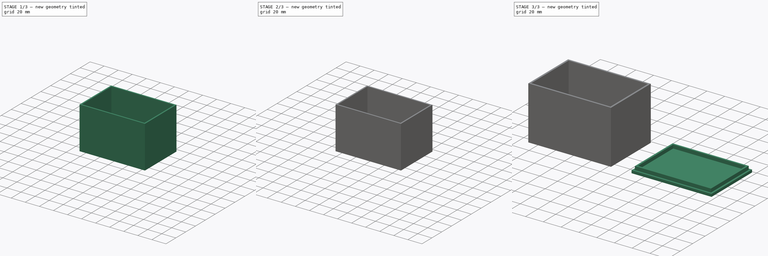
[diagram: build sequence overview — one tinted view per stage of 3, left to right]
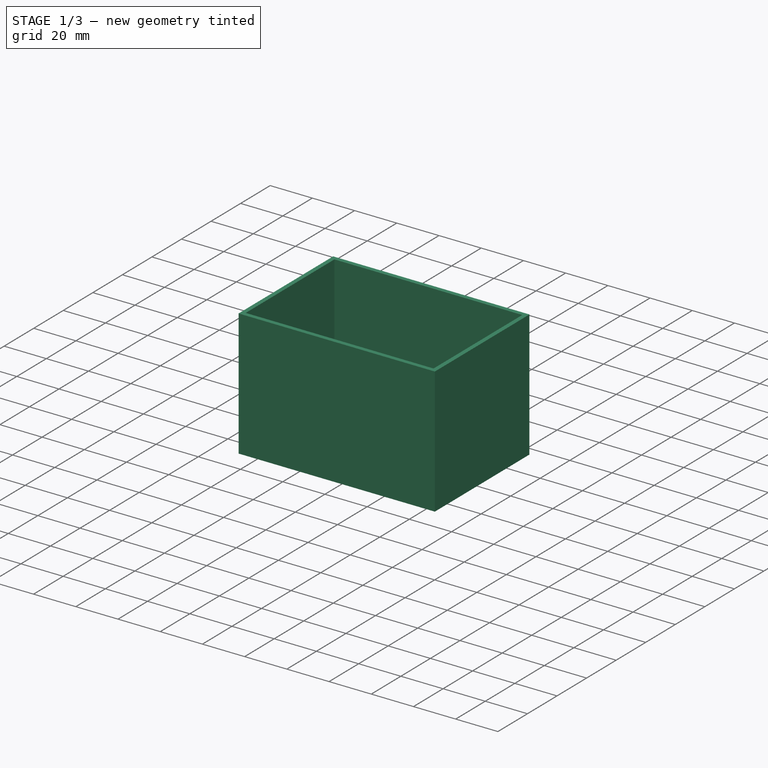
[diagram: stage 1 of 3 — iso view after this stage's code; geometry added in this stage tinted green]
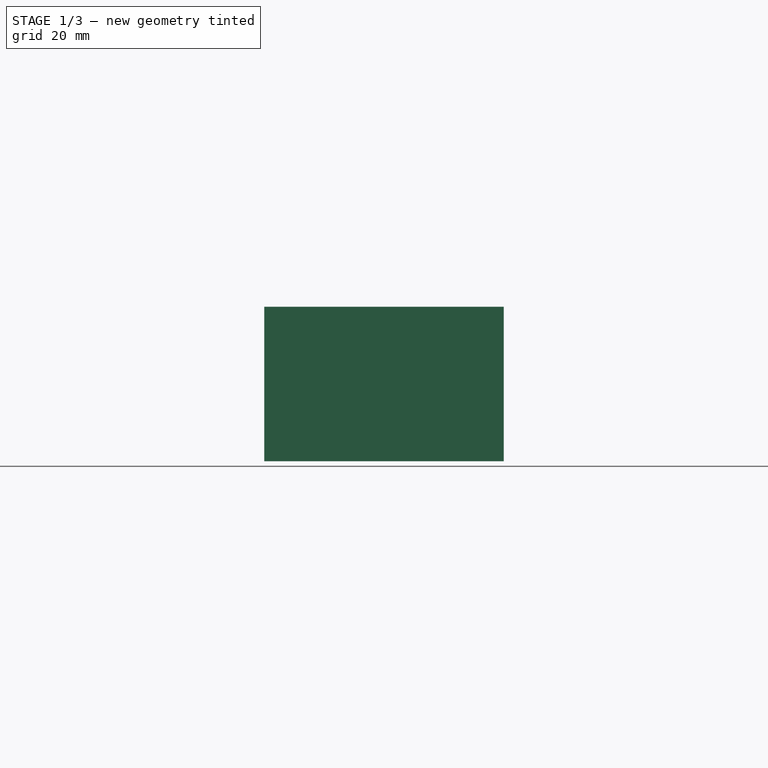
[diagram: stage 1 of 3 — front view after this stage's code; geometry added in this stage tinted green]
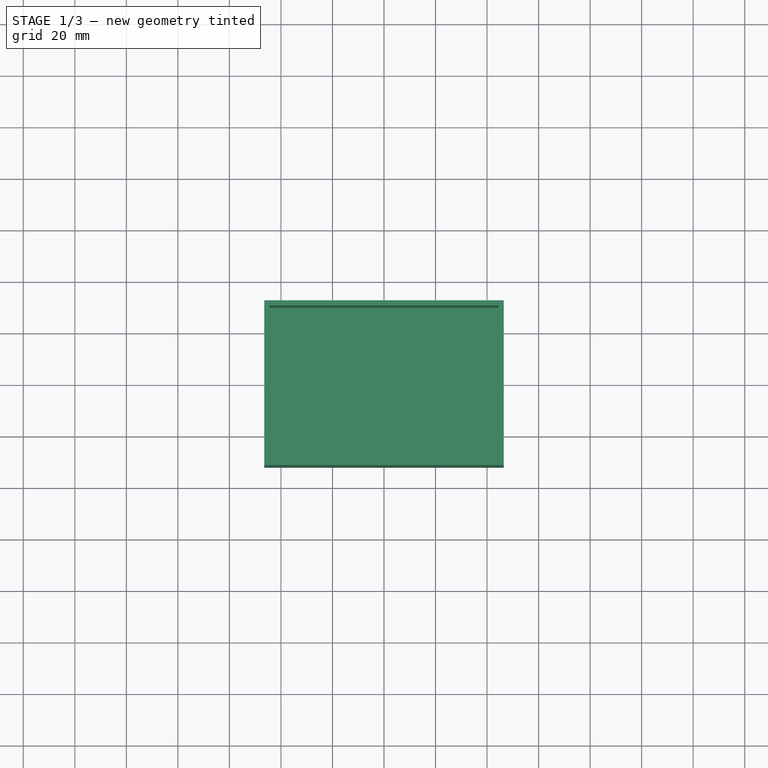
[diagram: stage 1 of 3 — top view after this stage's code; geometry added in this stage tinted green]
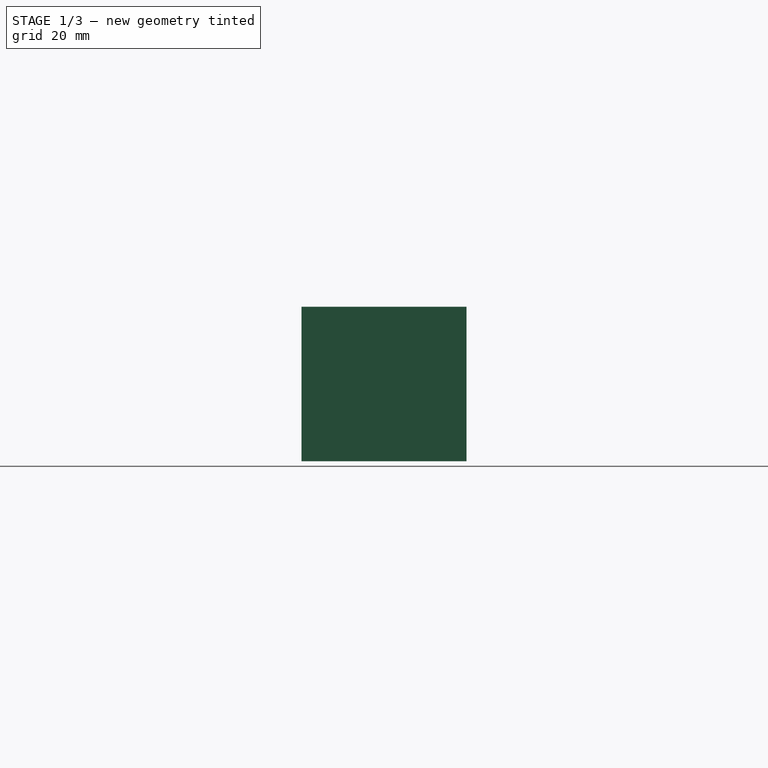
[diagram: stage 1 of 3 — right view after this stage's code; geometry added in this stage tinted green]
FCSTD DOCUMENT  (FreeCAD 0.19R24267 +99 (Git))
Label: case_spi4_v2
License: All rights reserved
LicenseURL: http://en.wikipedia.org/wiki/All_rights_reserved
objects: Sketcher::SketchObject×6, PartDesign::Pad×4, PartDesign::Body×2, PartDesign::Pocket×1, PartDesign::ShapeBinder×1
note: 19 computed .brp shape members not serialized (recipe doc carries the construction recipe); baked Part::Feature solids carry a one-line shape summary decoded from their .brp

FEATURE [Sketcher::SketchObject] Sketch  label="PCB_dimensiuns"
  FullyConstrained = true
  MapMode = 5
  Support = -> [XY_Plane]
  sketch-geometry (28):
    g0: LineSegment StartX=-39.5 StartY=28 StartZ=0 EndX=39.5 EndY=28 EndZ=0
    g1: LineSegment StartX=42.5 StartY=25 StartZ=0 EndX=42.5 EndY=-25 EndZ=0
    g2: LineSegment StartX=39.5 StartY=-28 StartZ=0 EndX=-39.5 EndY=-28 EndZ=0
    g3: LineSegment StartX=-42.5 StartY=-25 StartZ=0 EndX=-42.5 EndY=25 EndZ=0
    g4: ArcOfCircle CenterX=39.5 CenterY=25 CenterZ=0 NormalX=0 NormalY=0 NormalZ=1 AngleXU=0 Radius=3 StartAngle=0 EndAngle=1.5708
    g5: ArcOfCircle CenterX=39.5 CenterY=-25 CenterZ=0 NormalX=0 NormalY=0 NormalZ=1 AngleXU=0 Radius=3 StartAngle=4.71239 EndAngle=6.28319
    g6: ArcOfCircle CenterX=-39.5 CenterY=-25 CenterZ=0 NormalX=0 NormalY=0 NormalZ=1 AngleXU=0 Radius=3 StartAngle=3.14159 EndAngle=4.71239
    g7: ArcOfCircle CenterX=-39.5 CenterY=25 CenterZ=0 NormalX=0 NormalY=0 NormalZ=1 AngleXU=0 Radius=3 StartAngle=1.5708 EndAngle=3.14159
    g8: LineSegment StartX=39.5 StartY=28 StartZ=0 EndX=39.5 EndY=25 EndZ=0
    g9: LineSegment StartX=42.5 StartY=25 StartZ=0 EndX=39.5 EndY=25 EndZ=0
    g10: LineSegment StartX=-42.5 StartY=25 StartZ=0 EndX=-39.5 EndY=25 EndZ=0
    g11: LineSegment StartX=-39.5 StartY=25 StartZ=0 EndX=-39.5 EndY=28 EndZ=0
    g12: LineSegment StartX=-42.5 StartY=-25 StartZ=0 EndX=-39.5 EndY=-25 EndZ=0
    g13: LineSegment StartX=-39.5 StartY=-25 StartZ=0 EndX=-39.5 EndY=-28 EndZ=0
    g14: LineSegment StartX=39.5 StartY=-28 StartZ=0 EndX=39.5 EndY=-25 EndZ=0
    g15: LineSegment StartX=39.5 StartY=-25 StartZ=0 EndX=42.5 EndY=-25 EndZ=0
    g16: Circle CenterX=-39 CenterY=24.5 CenterZ=0 NormalX=0 NormalY=0 NormalZ=1 AngleXU=0 Radius=1.35
    g17: Circle CenterX=-39 CenterY=-24.5 CenterZ=0 NormalX=0 NormalY=0 NormalZ=1 AngleXU=0 Radius=1.35
    g18: Circle CenterX=19 CenterY=-24.5 CenterZ=0 NormalX=0 NormalY=0 NormalZ=1 AngleXU=0 Radius=1.35
    g19: Circle CenterX=19 CenterY=24.5 CenterZ=0 NormalX=0 NormalY=0 NormalZ=1 AngleXU=0 Radius=1.35
    g20: Circle CenterX=19 CenterY=24.5 CenterZ=0 NormalX=0 NormalY=0 NormalZ=1 AngleXU=0 Radius=3
    g21: Circle CenterX=-39 CenterY=24.5 CenterZ=0 NormalX=0 NormalY=0 NormalZ=1 AngleXU=0 Radius=3
    g22: Circle CenterX=-39 CenterY=-24.5 CenterZ=0 NormalX=0 NormalY=0 NormalZ=1 AngleXU=0 Radius=3
    g23: Circle CenterX=19 CenterY=-24.5 CenterZ=0 NormalX=0 NormalY=0 NormalZ=1 AngleXU=0 Radius=3
    g24: LineSegment StartX=-46.5 StartY=32 StartZ=0 EndX=46.5 EndY=32 EndZ=0
    g25: LineSegment StartX=46.5 StartY=32 StartZ=0 EndX=46.5 EndY=-32 EndZ=0
    g26: LineSegment StartX=46.5 StartY=-32 StartZ=0 EndX=-46.5 EndY=-32 EndZ=0
    g27: LineSegment StartX=-46.5 StartY=-32 StartZ=0 EndX=-46.5 EndY=32 EndZ=0
  constraints (71):
    c: Horizontal(g0)
    c: Horizontal(g2)
    c: Vertical(g1)
    c: Vertical(g3)
    c: Radius(g4) = 3
    c: Radius(g6) = 3
    c: Coincident(g8,g4)
    c: Coincident(g8,g4)
    c: Coincident(g9,g4)
    c: Coincident(g9,g8)
    c: Horizontal(g9)
    c: Perpendicular(g9,g8)
    c: Coincident(g11,g7)
    c: Coincident(g11,g7)
    c: Coincident(g7,g10)
    c: Perpendicular(g10,g11)
    c: Coincident(g10,g7)
    c: Perpendicular(g0,g11)
    c: Coincident(g12,g6)
    c: Coincident(g12,g6)
    c: Coincident(g13,g6)
    c: Coincident(g13,g6)
    c: Coincident(g14,g5)
    c: Coincident(g14,g5)
    c: Coincident(g15,g5)
    c: Coincident(g15,g5)
    c: Perpendicular(g13,g12)
    c: Perpendicular(g2,g13)
    c: Perpendicular(g15,g14)
    c: Perpendicular(g2,g14)
    c: Coincident(g0,g7)
    c: Coincident(g3,g7)
    c: Coincident(g1,g4)
    c: Coincident(g0,g4)
    c: Coincident(g3,g6)
    c: Coincident(g1,g5)
    c: Coincident(g2,g5)
    c: Coincident(g2,g6)
    c: DistanceX(g3,g1) = 85
    c: DistanceY(g2,g0) = 56
    c: Symmetric(g5,g4,g-1)
    c: Symmetric(g7,g4,g-2)
    c: DistanceX(g16,g19) = 58
    c: Symmetric(g19,g18,g-1)
    c: Symmetric(g17,g16,g-1)
    c: DistanceY(g18,g19) = 49
    c: DistanceY(g17,g16) = 49
    c: DistanceX(g3,g17) = 3.5
    c: Coincident(g20,g19)
    c: Coincident(g21,g16)
    c: Coincident(g22,g17)
    c: Coincident(g23,g18)
    c: Equal(g22,g23)
    c: Equal(g22,g20)
    c: Equal(g22,g21)
    c: Radius(g22) = 3
    c: Equal(g17,g18)
    c: Equal(g17,g19)
    c: Equal(g17,g16)
    c: Radius(g17) = 1.35  'screw_hole'
    c: Coincident(g24,g25)
    c: Coincident(g25,g26)
    c: Coincident(g26,g27)
    c: Coincident(g27,g24)
    c: Horizontal(g24)
    c: Horizontal(g26)
    c: Vertical(g25)
    c: DistanceX(g24,g3) = 4
    c: DistanceY(g0,g24) = 4
    c: Symmetric(g24,g26,g-1)
    c: DistanceX(g1,g24) = 4  'wall_ext'
FEATURE [PartDesign::Pad] Pad
  Direction = (1,1,1)
  Length = 60
  Length2 = 100
  Profile = -> Sketch
  Type = 0
FEATURE [Sketcher::SketchObject] Sketch001  label="inner_space"
  ExternalGeometry = -> [Pad]
  FullyConstrained = true
  MapMode = 5
  Placement = pos=(0,0,60) rot=(0,0,1;0rad)
  Support = -> [Pad]
  sketch-geometry (4):
    g0: LineSegment StartX=-44.5 StartY=30 StartZ=0 EndX=44.5 EndY=30 EndZ=0
    g1: LineSegment StartX=44.5 StartY=30 StartZ=0 EndX=44.5 EndY=-30 EndZ=0
    g2: LineSegment StartX=44.5 StartY=-30 StartZ=0 EndX=-44.5 EndY=-30 EndZ=0
    g3: LineSegment StartX=-44.5 StartY=-30 StartZ=0 EndX=-44.5 EndY=30 EndZ=0
  constraints (12):
    c: Coincident(g0,g1)
    c: Coincident(g1,g2)
    c: Coincident(g2,g3)
    c: Coincident(g3,g0)
    c: Horizontal(g0)
    c: Horizontal(g2)
    c: Vertical(g1)
    c: Vertical(g3)
    c: DistanceX(g0,g-4) = 2
    c: DistanceY(g0,g-4) = 2
    c: DistanceX(g-3,g2) = 2
    c: DistanceY(g-3,g2) = 2
FEATURE [PartDesign::Pocket] Pocket
  BaseFeature = -> Pad
  Length = 55
  Length2 = 100
  Profile = -> Sketch001
  Type = 0
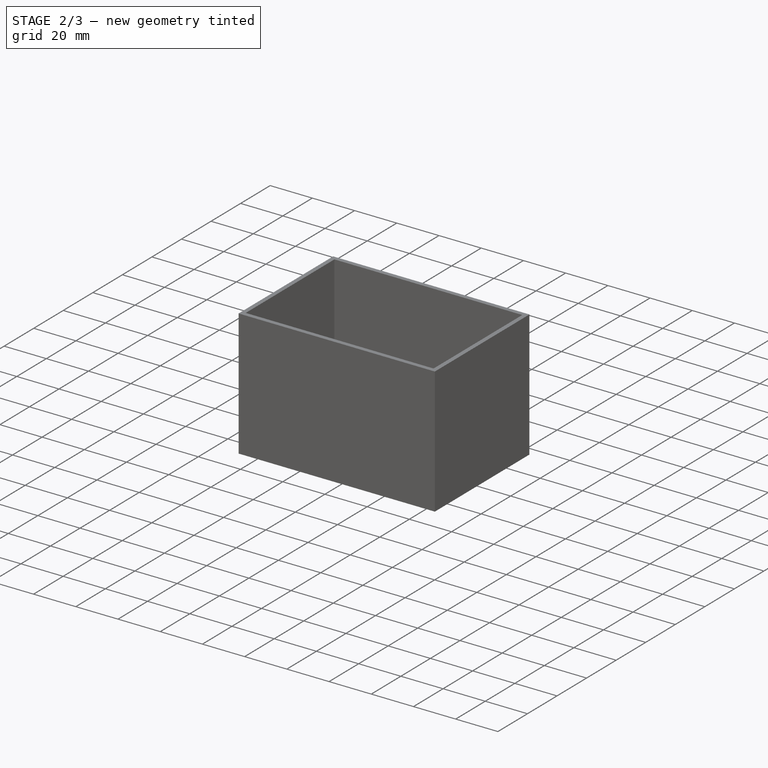
[diagram: stage 2 of 3 — iso view after this stage's code; geometry added in this stage tinted green]
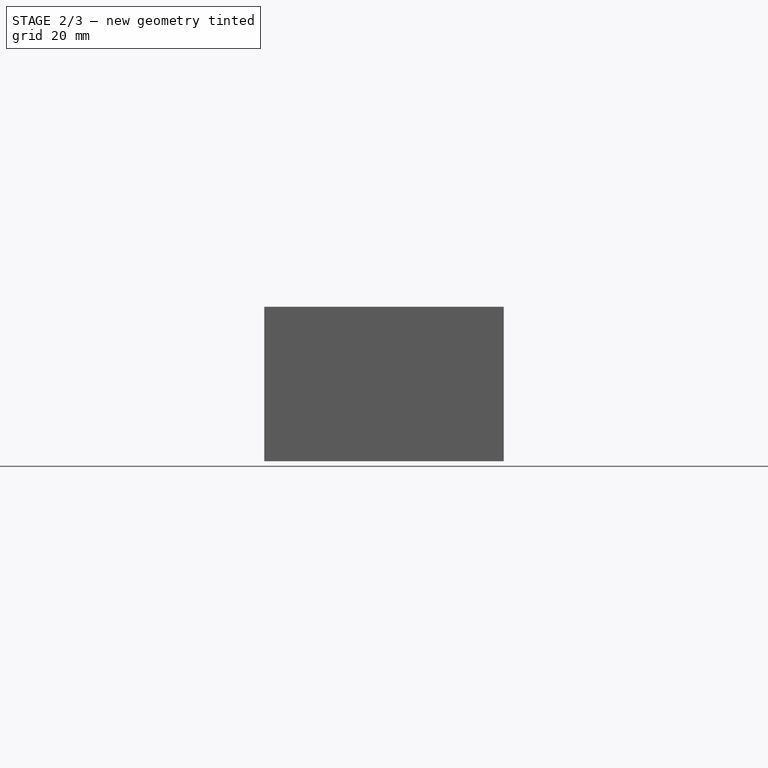
[diagram: stage 2 of 3 — front view after this stage's code; geometry added in this stage tinted green]
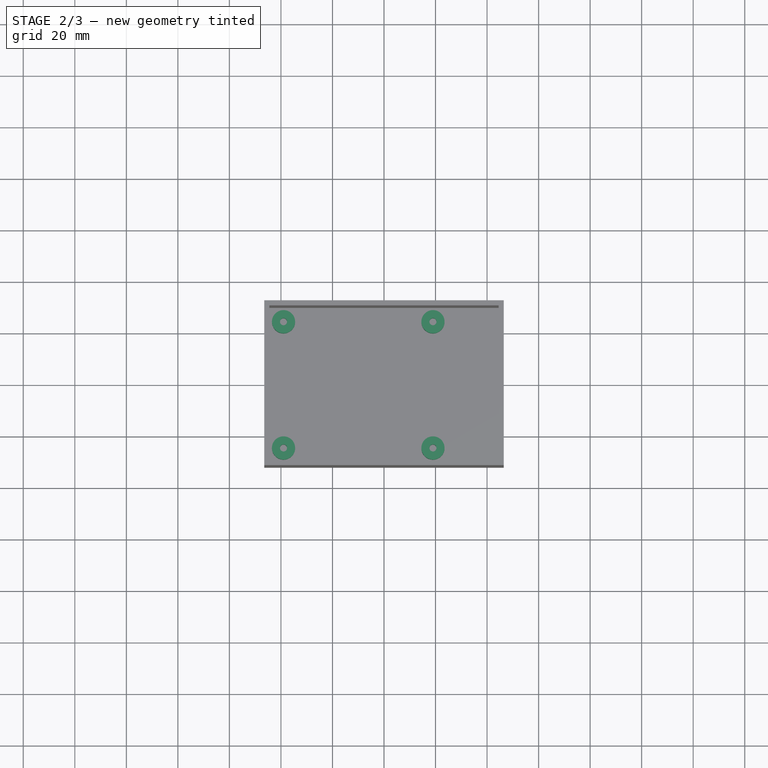
[diagram: stage 2 of 3 — top view after this stage's code; geometry added in this stage tinted green]
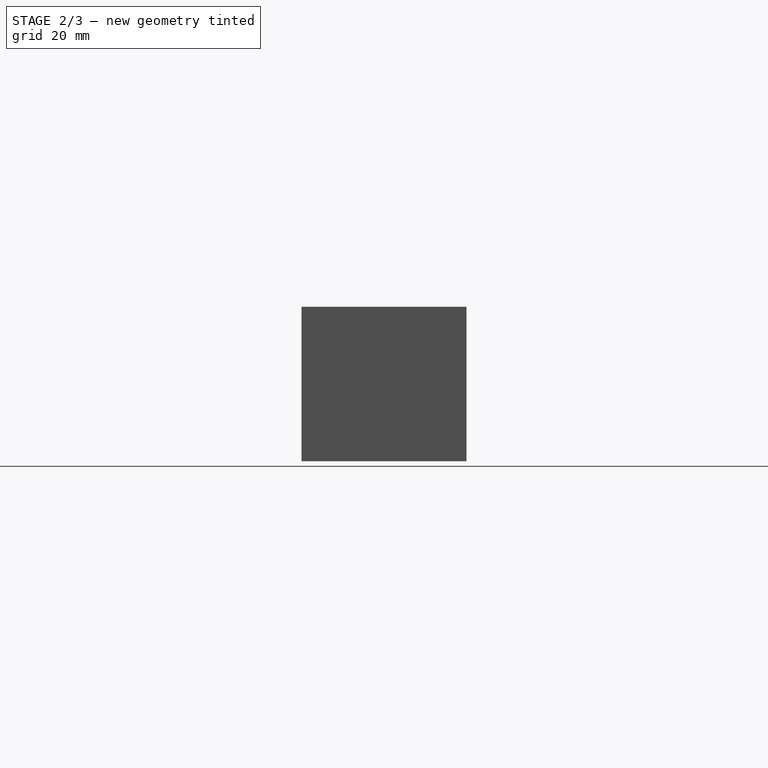
[diagram: stage 2 of 3 — right view after this stage's code; geometry added in this stage tinted green]
FEATURE [Sketcher::SketchObject] Sketch002  label="screw_pads"
  ExternalGeometry = -> [Pocket]
  FullyConstrained = true
  MapMode = 5
  Placement = pos=(0,0,5) rot=(0,0,1;0rad)
  Support = -> [Pocket]
  sketch-geometry (8):
    g0: Circle CenterX=-39 CenterY=24.5 CenterZ=0 NormalX=0 NormalY=0 NormalZ=1 AngleXU=0 Radius=1.37
    g1: Circle CenterX=-39 CenterY=24.5 CenterZ=0 NormalX=0 NormalY=0 NormalZ=1 AngleXU=0 Radius=4.5
    g2: Circle CenterX=19 CenterY=24.5 CenterZ=0 NormalX=0 NormalY=0 NormalZ=1 AngleXU=0 Radius=1.37
    g3: Circle CenterX=19 CenterY=24.5 CenterZ=0 NormalX=0 NormalY=0 NormalZ=1 AngleXU=0 Radius=4.5
    g4: Circle CenterX=-39 CenterY=-24.5 CenterZ=0 NormalX=0 NormalY=0 NormalZ=1 AngleXU=0 Radius=1.37
    g5: Circle CenterX=-39 CenterY=-24.5 CenterZ=0 NormalX=0 NormalY=0 NormalZ=1 AngleXU=0 Radius=4.5
    g6: Circle CenterX=19 CenterY=-24.5 CenterZ=0 NormalX=0 NormalY=0 NormalZ=1 AngleXU=0 Radius=1.37
    g7: Circle CenterX=19 CenterY=-24.5 CenterZ=0 NormalX=0 NormalY=0 NormalZ=1 AngleXU=0 Radius=4.5
  constraints (18):
    c: Coincident(g1,g0)
    c: Radius(g0) = 1.37
    c: Radius(g1) = 4.5
    c: Coincident(g3,g2)
    c: Equal(g0,g2) = 1.37
    c: Equal(g1,g3) = 5
    c: Coincident(g5,g4)
    c: Equal(g0,g4) = 1.37
    c: Equal(g1,g5) = 5
    c: Coincident(g7,g6)
    c: Equal(g0,g6) = 1.37
    c: Equal(g1,g7) = 5
    c: DistanceX(g0,g2) = 58
    c: DistanceY(g6,g2) = 49
    c: Symmetric(g6,g2,g-1)
    c: Symmetric(g0,g4,g-1)
    c: DistanceY(g4,g0) = 49
    c: DistanceX(g0,g-1) = 39
FEATURE [PartDesign::Pad] Pad001
  BaseFeature = -> Pocket
  Direction = (1,1,1)
  Length = 7
  Length2 = 100
  Profile = -> Sketch002
  Type = 0
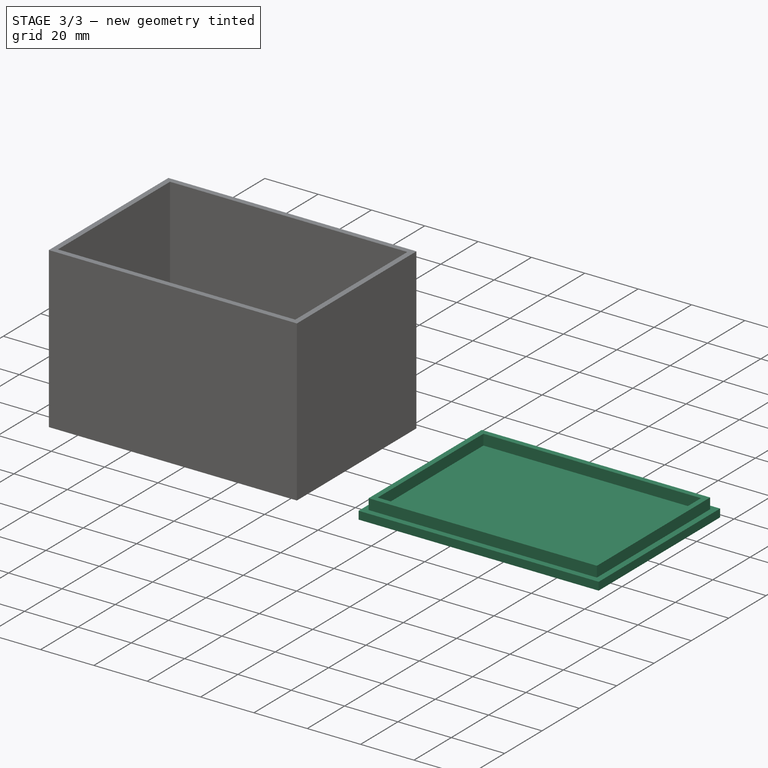
[diagram: stage 3 of 3 — iso view after this stage's code; geometry added in this stage tinted green]
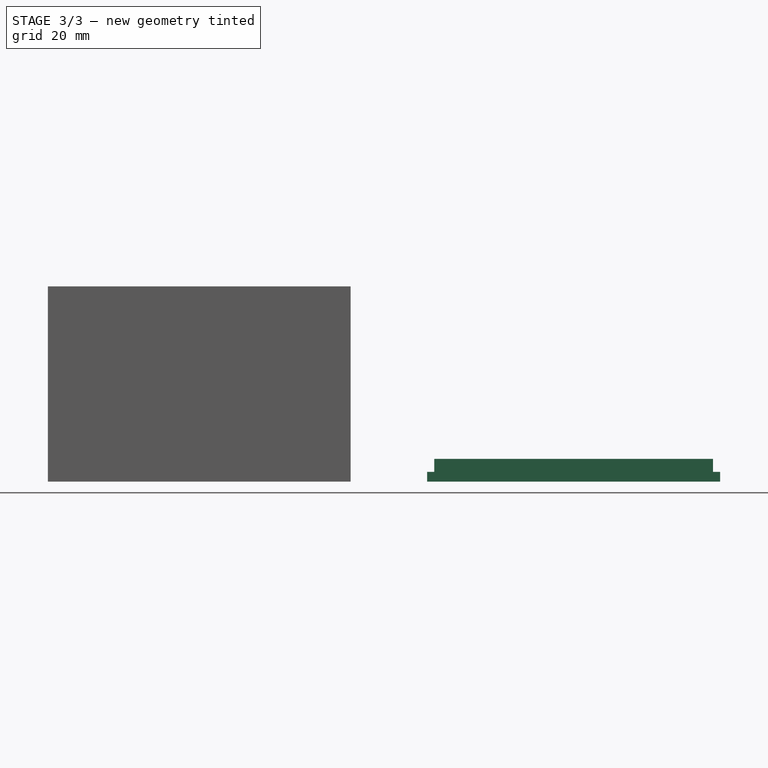
[diagram: stage 3 of 3 — front view after this stage's code; geometry added in this stage tinted green]
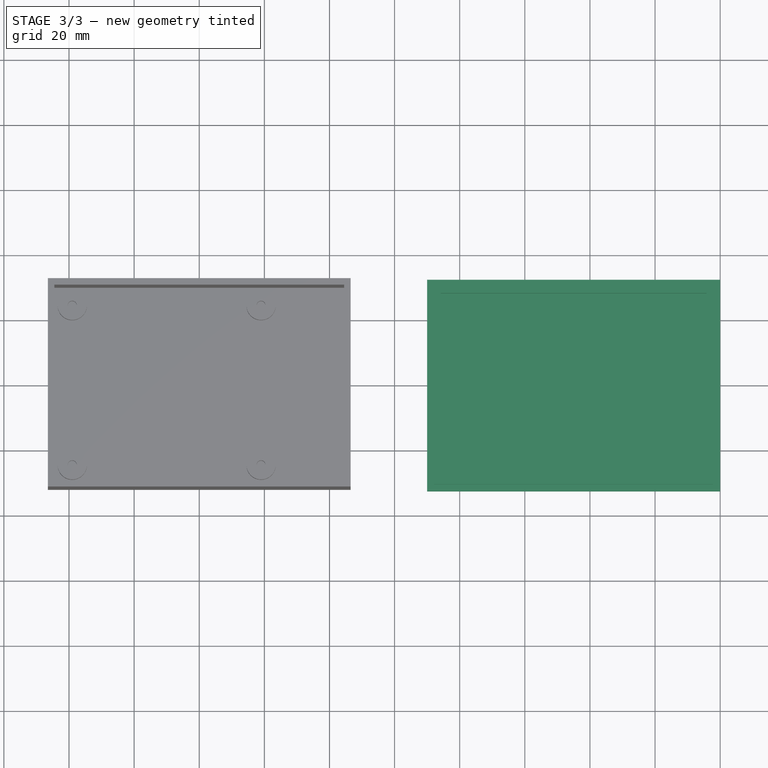
[diagram: stage 3 of 3 — top view after this stage's code; geometry added in this stage tinted green]
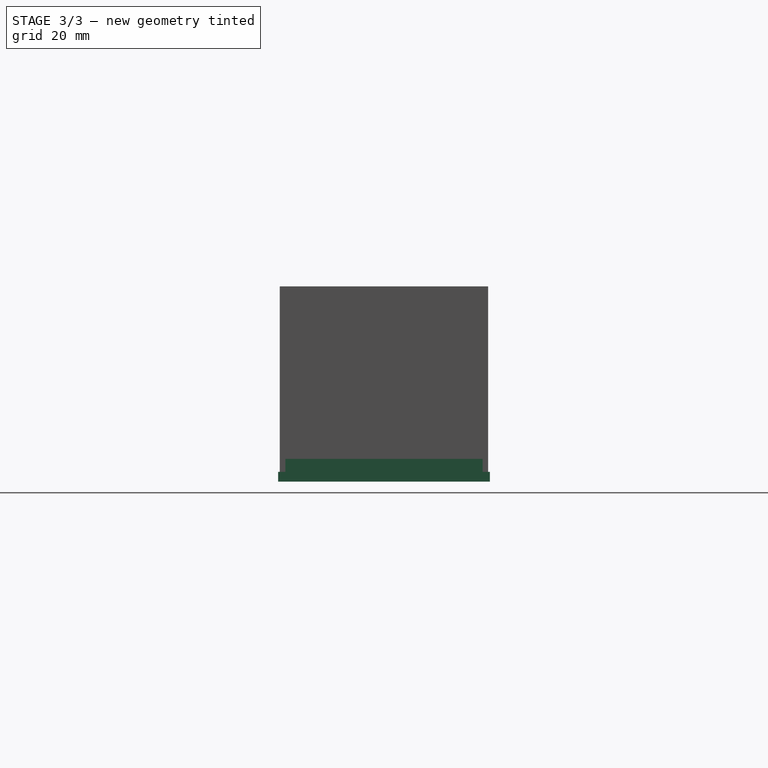
[diagram: stage 3 of 3 — right view after this stage's code; geometry added in this stage tinted green]
FEATURE [PartDesign::Body] Body  label="box_body_main"
  Group = -> [Sketch,Pad,Sketch001,Pocket,Sketch002,Pad001]
  Origin = -> Origin
  Tip = -> Pad001
FEATURE [Sketcher::SketchObject] Sketch003
  FullyConstrained = true
  MapMode = 5
  Support = -> [XY_Plane001]
  sketch-geometry (4):
    g0: LineSegment StartX=70 StartY=32.5 StartZ=0 EndX=160 EndY=32.5 EndZ=0
    g1: LineSegment StartX=160 StartY=32.5 StartZ=0 EndX=160 EndY=-32.5 EndZ=0
    g2: LineSegment StartX=160 StartY=-32.5 StartZ=0 EndX=70 EndY=-32.5 EndZ=0
    g3: LineSegment StartX=70 StartY=-32.5 StartZ=0 EndX=70 EndY=32.5 EndZ=0
  constraints (11):
    c: Coincident(g0,g1)
    c: Coincident(g1,g2)
    c: Coincident(g2,g3)
    c: Coincident(g3,g0)
    c: Horizontal(g0)
    c: Horizontal(g2)
    c: Vertical(g1)
    c: DistanceX(g0,g0) = 90
    c: DistanceY(g1,g0) = 65
    c: DistanceX(g-1,g0) = 70
    c: Symmetric(g0,g2,g-1)
FEATURE [PartDesign::Pad] Pad002
  Direction = (1,1,1)
  Length = 3
  Length2 = 100
  Profile = -> Sketch003
  Type = 0
FEATURE [Sketcher::SketchObject] Sketch004
  ExternalGeometry = -> [Pad002]
  FullyConstrained = true
  MapMode = 5
  Placement = pos=(0,0,3) rot=(0,0,1;0rad)
  Support = -> [Pad002]
  sketch-geometry (8):
    g0: LineSegment StartX=72.2 StartY=30.3 StartZ=0 EndX=157.8 EndY=30.3 EndZ=0
    g1: LineSegment StartX=157.8 StartY=30.3 StartZ=0 EndX=157.8 EndY=-30.3 EndZ=0
    g2: LineSegment StartX=157.8 StartY=-30.3 StartZ=0 EndX=72.2 EndY=-30.3 EndZ=0
    g3: LineSegment StartX=72.2 StartY=-30.3 StartZ=0 EndX=72.2 EndY=30.3 EndZ=0
    g4: LineSegment StartX=74.2 StartY=28.3 StartZ=0 EndX=155.8 EndY=28.3 EndZ=0
    g5: LineSegment StartX=155.8 StartY=28.3 StartZ=0 EndX=155.8 EndY=-28.3 EndZ=0
    g6: LineSegment StartX=155.8 StartY=-28.3 StartZ=0 EndX=74.2 EndY=-28.3 EndZ=0
    g7: LineSegment StartX=74.2 StartY=-28.3 StartZ=0 EndX=74.2 EndY=28.3 EndZ=0
  constraints (24):
    c: Coincident(g0,g1)
    c: Coincident(g1,g2)
    c: Coincident(g2,g3)
    c: Coincident(g3,g0)
    c: Horizontal(g0)
    c: Horizontal(g2)
    c: Vertical(g1)
    c: Vertical(g3)
    c: DistanceY(g0,g-4) = 2.2
    c: DistanceX(g-4,g0) = 2.2
    c: DistanceX(g1,g-6) = 2.2
    c: DistanceY(g-6,g1) = 2.2
    c: Coincident(g4,g5)
    c: Coincident(g5,g6)
    c: Coincident(g6,g7)
    c: Coincident(g7,g4)
    c: Horizontal(g4)
    c: Horizontal(g6)
    c: Vertical(g5)
    c: Vertical(g7)
    c: DistanceX(g0,g4) = 2
    c: DistanceY(g4,g0) = 2
    c: DistanceX(g5,g1) = 2
    c: DistanceY(g1,g5) = 2
FEATURE [PartDesign::Pad] Pad003
  BaseFeature = -> Pad002
  Direction = (1,1,1)
  Length = 4
  Length2 = 100
  Profile = -> Sketch004
  Type = 0
FEATURE [PartDesign::ShapeBinder] CopyPad001
  TraceSupport = false
FEATURE [PartDesign::Body] Body001  label="cover/lid"
  Group = -> [Sketch003,Pad002,Sketch004,Pad003,CopyPad001]
  Origin = -> Origin001
  Tip = -> Pad003
FEATURE [Sketcher::SketchObject] Sketch005
  FullyConstrained = false
  MapMode = 5
  Placement = pos=(0,-32,0) rot=(1,0,0;1.5708rad)
  Support = -> [Pad001]
  sketch-geometry (16):
    g0: LineSegment StartX=-36.0119 StartY=12.5773 StartZ=0 EndX=-26.0119 EndY=12.5773 EndZ=0
    g1: LineSegment StartX=-26.0119 StartY=12.5773 StartZ=0 EndX=-26.0119 EndY=8.57729 EndZ=0
    g2: LineSegment StartX=-26.0119 StartY=8.57729 StartZ=0 EndX=-36.0119 EndY=8.57729 EndZ=0
    g3: LineSegment StartX=-36.0119 StartY=8.57729 StartZ=0 EndX=-36.0119 EndY=12.5773 EndZ=0
    g4: LineSegment StartX=-19.2619 StartY=12.5773 StartZ=0 EndX=-12.7619 EndY=12.5773 EndZ=0
    g5: LineSegment StartX=-12.7619 StartY=12.5773 StartZ=0 EndX=-12.7619 EndY=8.57729 EndZ=0
    g6: LineSegment StartX=-12.7619 StartY=8.57729 StartZ=0 EndX=-19.2619 EndY=8.57729 EndZ=0
    g7: LineSegment StartX=-19.2619 StartY=8.57729 StartZ=0 EndX=-19.2619 EndY=12.5773 EndZ=0
    g8: LineSegment StartX=-5.76194 StartY=12.5773 StartZ=0 EndX=0.73806 EndY=12.5773 EndZ=0
    g9: LineSegment StartX=0.73806 StartY=12.5773 StartZ=0 EndX=0.73806 EndY=8.57729 EndZ=0
    g10: LineSegment StartX=0.73806 StartY=8.57729 StartZ=0 EndX=-5.76194 EndY=8.57729 EndZ=0
    g11: LineSegment StartX=-5.76194 StartY=8.57729 StartZ=0 EndX=-5.76194 EndY=12.5773 EndZ=0
    g12: LineSegment StartX=8.48806 StartY=15.5773 StartZ=0 EndX=15.4881 EndY=15.5773 EndZ=0
    g13: LineSegment StartX=15.4881 StartY=15.5773 StartZ=0 EndX=15.4881 EndY=8.57729 EndZ=0
    g14: LineSegment StartX=15.4881 StartY=8.57729 StartZ=0 EndX=8.48806 EndY=8.57729 EndZ=0
    g15: LineSegment StartX=8.48806 StartY=8.57729 StartZ=0 EndX=8.48806 EndY=15.5773 EndZ=0
  constraints (46):
    c: Coincident(g0,g1)
    c: Coincident(g1,g2)
    c: Coincident(g2,g3)
    c: Coincident(g3,g0)
    c: Horizontal(g0)
    c: Horizontal(g2)
    c: Vertical(g1)
    c: Vertical(g3)
    c: Coincident(g4,g5)
    c: Coincident(g5,g6)
    c: Coincident(g6,g7)
    c: Coincident(g7,g4)
    c: Horizontal(g4)
    c: Horizontal(g6)
    c: Vertical(g5)
    c: Vertical(g7)
    c: Coincident(g8,g9)
    c: Coincident(g9,g10)
    c: Coincident(g10,g11)
    c: Coincident(g11,g8)
    c: Horizontal(g8)
    c: Horizontal(g10)
    c: Vertical(g9)
    c: Vertical(g11)
    c: Coincident(g12,g13)
    c: Coincident(g13,g14)
    c: Coincident(g14,g15)
    c: Coincident(g15,g12)
    c: Horizontal(g12)
    c: Horizontal(g14)
    c: Vertical(g13)
    c: Vertical(g15)
    c: Equal(g15,g12)
    c: DistanceX(g12,g12) = 7
    c: DistanceY(g14,g9) = 0
    c: DistanceY(g10,g5) = 0
    c: DistanceY(g6,g1) = 0
    c: DistanceY(g7,g7) = 4
    c: Equal(g8,g4)
    c: DistanceX(g0,g0) = 10
    c: DistanceX(g4,g8) = 13.5
    c: Equal(g11,g5)
    c: DistanceX(g8,g8) = 6.5
    c: DistanceX(g0,g4) = 6.75
    c: Equal(g1,g7)
    c: DistanceX(g8,g12) = 7.75
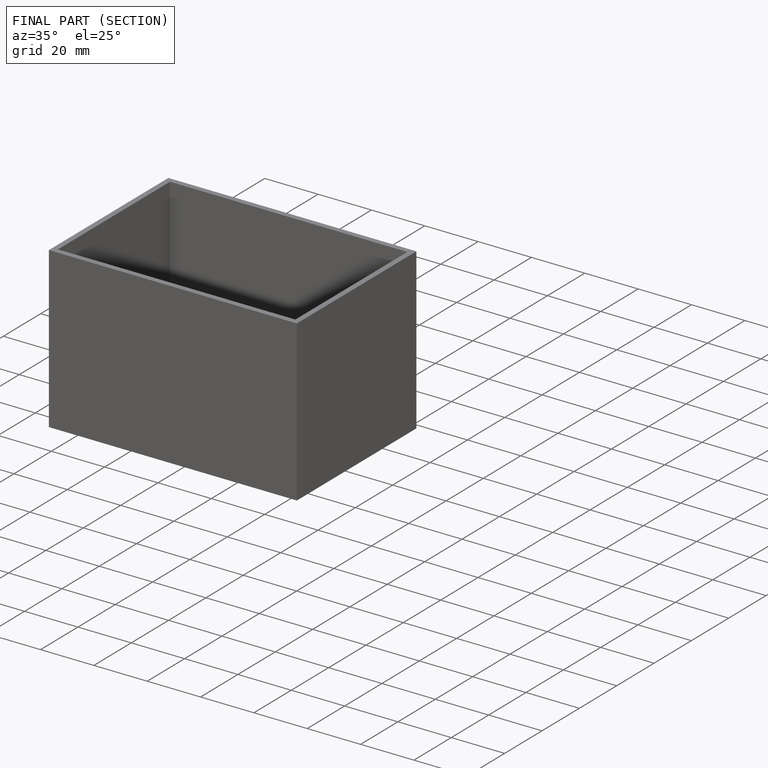
[diagram: finished part — half-section view (interior)]
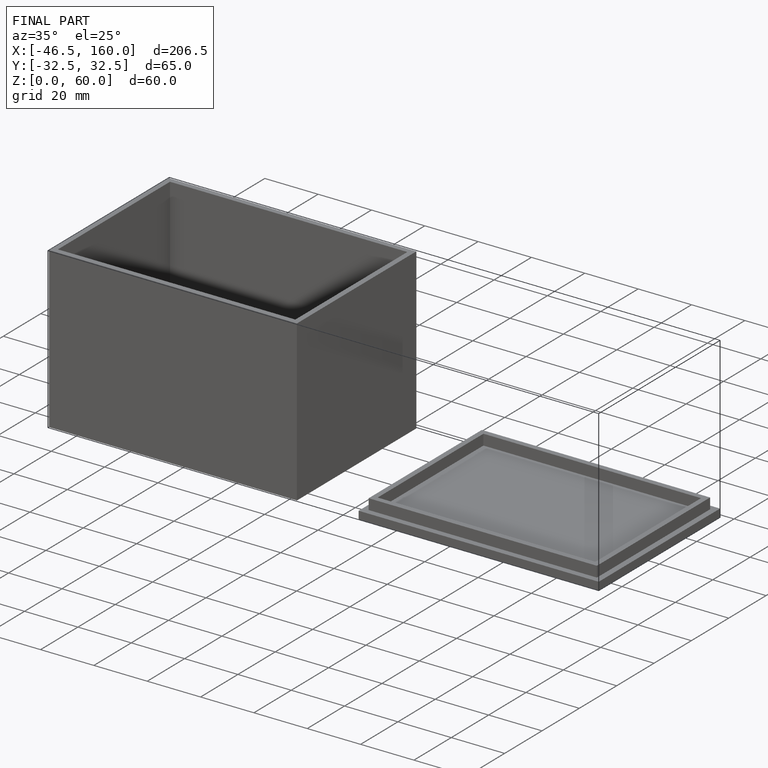
[diagram: finished part — iso view with bounding-box wireframe]
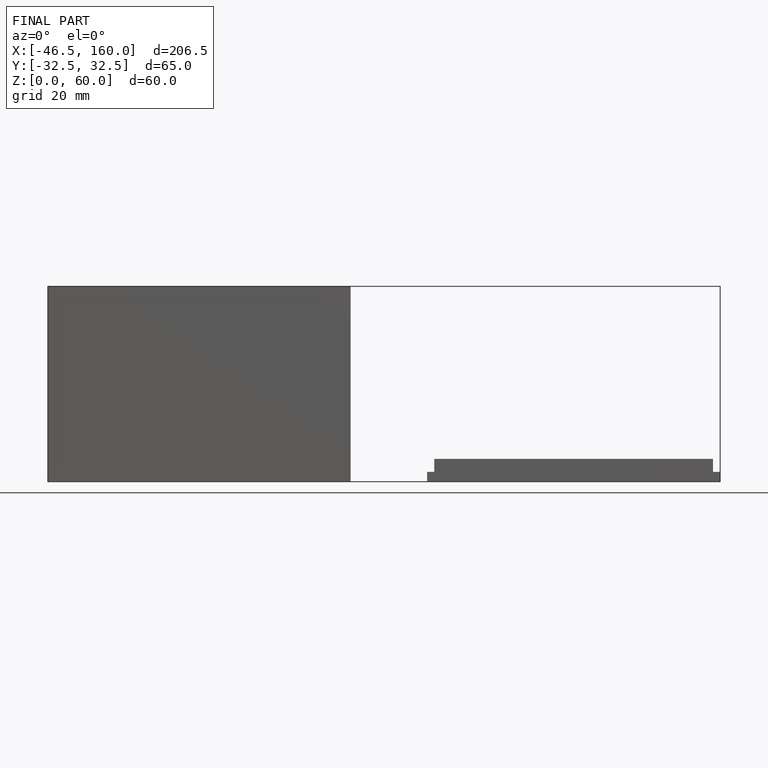
[diagram: finished part — front view with bounding-box wireframe]
